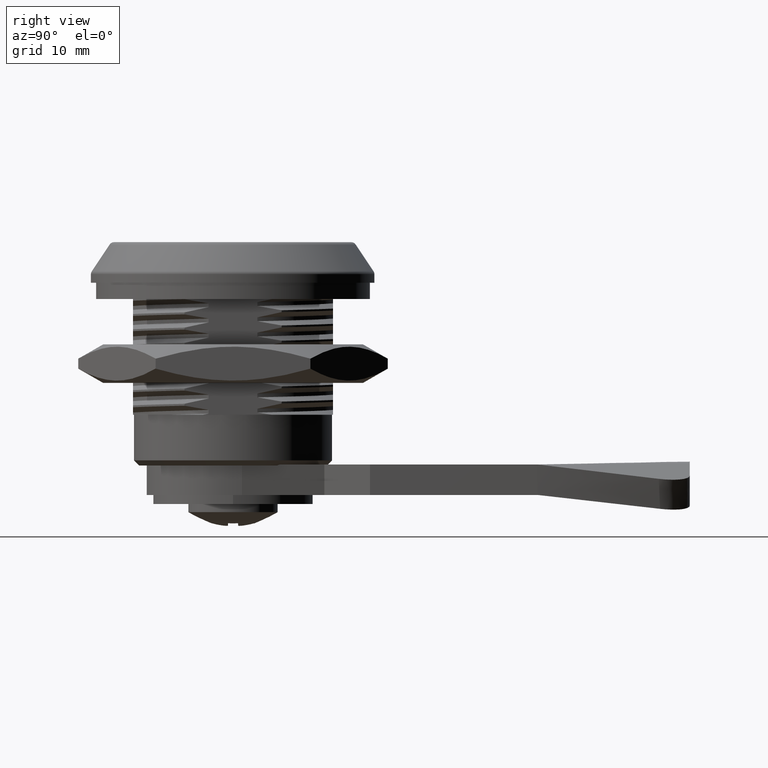
[diagram: clean part render]
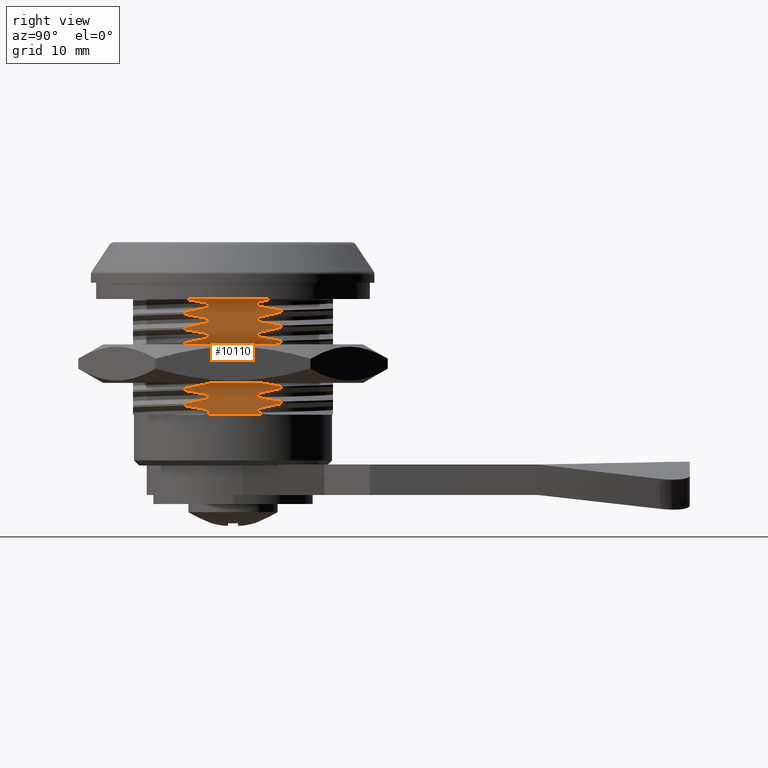
[diagram: same view with one face highlighted and labeled with its STEP entity id]
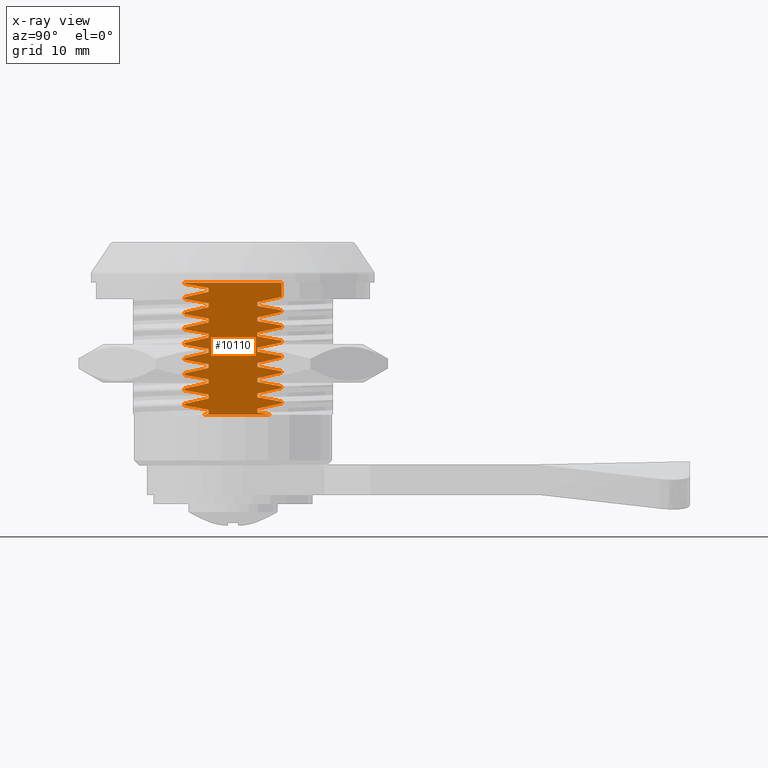
[diagram: x-ray of the same camera — body ghosted, the highlighted face saturated]
A machine part, right view. The second image highlights one B-rep face of the part: STEP entity #10110.
The next image is the same camera in x-ray: the body ghosted, the highlighted face saturated — about 0% of this face is hidden behind the body in this view.
In plain terms, the highlighted planar face has unit normal (-1, -0, 0).
Its self-contained STEP definition (entity closure, byte-faithful):
#400=PLANE('',#10740);
#667=LINE('',#13926,#1502);
#683=LINE('',#14009,#1518);
#685=LINE('',#14020,#1520);
#687=LINE('',#14037,#1522);
#689=LINE('',#14054,#1524);
#691=LINE('',#14071,#1526);
#693=LINE('',#14088,#1528);
#695=LINE('',#14105,#1530);
#697=LINE('',#14122,#1532);
#699=LINE('',#14139,#1534);
#798=LINE('',#15328,#1633);
#799=LINE('',#15342,#1634);
#800=LINE('',#15356,#1635);
#801=LINE('',#15370,#1636);
#802=LINE('',#15384,#1637);
#803=LINE('',#15398,#1638);
#804=LINE('',#15412,#1639);
#805=LINE('',#15426,#1640);
#806=LINE('',#15437,#1641);
#807=LINE('',#15446,#1642);
#808=LINE('',#15455,#1643);
#809=LINE('',#15472,#1644);
#810=LINE('',#15489,#1645);
#811=LINE('',#15506,#1646);
#812=LINE('',#15523,#1647);
#813=LINE('',#15540,#1648);
#814=LINE('',#15557,#1649);
#815=LINE('',#15574,#1650);
#816=LINE('',#15591,#1651);
#817=LINE('',#15608,#1652);
#818=LINE('',#15625,#1653);
#819=LINE('',#15642,#1654);
#820=LINE('',#15659,#1655);
#821=LINE('',#15676,#1656);
#822=LINE('',#15693,#1657);
#823=LINE('',#15710,#1658);
#1502=VECTOR('',#11474,9.56660859448112);
#1518=VECTOR('',#11532,0.10828697009722);
#1520=VECTOR('',#11536,0.187500004096758);
#1522=VECTOR('',#11540,0.18750000409676);
#1524=VECTOR('',#11544,0.18750000409676);
#1526=VECTOR('',#11548,0.1875000040967);
#1528=VECTOR('',#11552,0.187500004096701);
#1530=VECTOR('',#11556,0.187500004096699);
#1532=VECTOR('',#11560,0.187500004096701);
#1534=VECTOR('',#11564,0.187500004096697);
#1633=VECTOR('',#11713,1.39171302990278);
#1634=VECTOR('',#11716,0.187500004096779);
#1635=VECTOR('',#11719,0.187500004096779);
#1636=VECTOR('',#11722,0.187500004096786);
#1637=VECTOR('',#11725,0.187500004096799);
#1638=VECTOR('',#11728,0.187500004096806);
#1639=VECTOR('',#11731,0.187500004096799);
#1640=VECTOR('',#11734,0.187500004096803);
#1641=VECTOR('',#11737,0.374999999999999);
#1642=VECTOR('',#11738,6.78163060013395);
#1643=VECTOR('',#11739,0.374999999999999);
#1644=VECTOR('',#11740,0.375000000000001);
#1645=VECTOR('',#11741,0.374999999999999);
#1646=VECTOR('',#11742,0.375000000000001);
#1647=VECTOR('',#11743,0.374999999999999);
#1648=VECTOR('',#11744,0.375000000000021);
#1649=VECTOR('',#11745,0.375000000000019);
#1650=VECTOR('',#11746,0.37500000000001);
#1651=VECTOR('',#11747,0.37499999999998);
#1652=VECTOR('',#11748,0.374999999999981);
#1653=VECTOR('',#11749,0.374999999999981);
#1654=VECTOR('',#11750,0.374999999999981);
#1655=VECTOR('',#11751,0.374999999999999);
#1656=VECTOR('',#11752,0.375000000000001);
#1657=VECTOR('',#11753,0.374999999999999);
#1658=VECTOR('',#11754,0.375000000000001);
#2438=B_SPLINE_CURVE_WITH_KNOTS('',3,(#15429,#15430,#15431,#15432,#15433,
#15434,#15435),.UNSPECIFIED.,.F.,.F.,(4,3,4),(-0.242170769104167,-0.121071173947131,
0.),.UNSPECIFIED.);
#2439=B_SPLINE_CURVE_WITH_KNOTS('',3,(#15439,#15440,#15441,#15442,#15443,
#15444),.UNSPECIFIED.,.F.,.F.,(4,2,4),(-0.0580920299783846,-0.0290455949117338,
0.),.UNSPECIFIED.);
#2440=B_SPLINE_CURVE_WITH_KNOTS('',3,(#15448,#15449,#15450,#15451,#15452,
#15453),.UNSPECIFIED.,.F.,.F.,(4,2,4),(-0.14265153983592,-0.0713248517239224,
-1.00000000827216E-6),.UNSPECIFIED.);
#2441=B_SPLINE_CURVE_WITH_KNOTS('',3,(#15456,#15457,#15458,#15459,#15460,
#15461,#15462),.UNSPECIFIED.,.F.,.F.,(4,3,4),(-0.244169262059711,-0.122096895773138,
0.),.UNSPECIFIED.);
#2442=B_SPLINE_CURVE_WITH_KNOTS('',3,(#15464,#15465,#15466,#15467,#15468,
#15469,#15470),.UNSPECIFIED.,.F.,.F.,(4,3,4),(-0.242170769104439,-0.121071173947087,
0.),.UNSPECIFIED.);
#2443=B_SPLINE_CURVE_WITH_KNOTS('',3,(#15473,#15474,#15475,#15476,#15477,
#15478,#15479),.UNSPECIFIED.,.F.,.F.,(4,3,4),(-0.244169262058095,-0.122096895772789,
0.),.UNSPECIFIED.);
#2444=B_SPLINE_CURVE_WITH_KNOTS('',3,(#15481,#15482,#15483,#15484,#15485,
#15486,#15487),.UNSPECIFIED.,.F.,.F.,(4,3,4),(-0.242170769104423,-0.121071173947077,
0.),.UNSPECIFIED.);
#2445=B_SPLINE_CURVE_WITH_KNOTS('',3,(#15490,#15491,#15492,#15493,#15494,
#15495,#15496),.UNSPECIFIED.,.F.,.F.,(4,3,4),(-0.244169262058105,-0.122096895772787,
0.),.UNSPECIFIED.);
#2446=B_SPLINE_CURVE_WITH_KNOTS('',3,(#15498,#15499,#15500,#15501,#15502,
#15503,#15504),.UNSPECIFIED.,.F.,.F.,(4,3,4),(-0.242170769104279,-0.121071173947058,
0.),.UNSPECIFIED.);
#2447=B_SPLINE_CURVE_WITH_KNOTS('',3,(#15507,#15508,#15509,#15510,#15511,
#15512,#15513),.UNSPECIFIED.,.F.,.F.,(4,3,4),(-0.244169262058275,-0.122096895772829,
0.),.UNSPECIFIED.);
#2448=B_SPLINE_CURVE_WITH_KNOTS('',3,(#15515,#15516,#15517,#15518,#15519,
#15520,#15521),.UNSPECIFIED.,.F.,.F.,(4,3,4),(-0.242170769104214,-0.121071173947013,
0.),.UNSPECIFIED.);
#2449=B_SPLINE_CURVE_WITH_KNOTS('',3,(#15524,#15525,#15526,#15527,#15528,
#15529,#15530),.UNSPECIFIED.,.F.,.F.,(4,3,4),(-0.244169262059622,-0.12209689577311,
0.),.UNSPECIFIED.);
#2450=B_SPLINE_CURVE_WITH_KNOTS('',3,(#15532,#15533,#15534,#15535,#15536,
#15537,#15538),.UNSPECIFIED.,.F.,.F.,(4,3,4),(-0.242170769104195,-0.121071173947005,
0.),.UNSPECIFIED.);
#2451=B_SPLINE_CURVE_WITH_KNOTS('',3,(#15541,#15542,#15543,#15544,#15545,
#15546,#15547),.UNSPECIFIED.,.F.,.F.,(4,3,4),(-0.244169262059585,-0.122096895773099,
0.),.UNSPECIFIED.);
#2452=B_SPLINE_CURVE_WITH_KNOTS('',3,(#15549,#15550,#15551,#15552,#15553,
#15554,#15555),.UNSPECIFIED.,.F.,.F.,(4,3,4),(-0.242170769104369,-0.121071173947077,
0.),.UNSPECIFIED.);
#2453=B_SPLINE_CURVE_WITH_KNOTS('',3,(#15558,#15559,#15560,#15561,#15562,
#15563,#15564),.UNSPECIFIED.,.F.,.F.,(4,3,4),(-0.244169262059676,-0.122096895773125,
0.),.UNSPECIFIED.);
#2454=B_SPLINE_CURVE_WITH_KNOTS('',3,(#15566,#15567,#15568,#15569,#15570,
#15571,#15572),.UNSPECIFIED.,.F.,.F.,(4,3,4),(-0.242170769104306,-0.121071173947062,
0.),.UNSPECIFIED.);
#2455=B_SPLINE_CURVE_WITH_KNOTS('',3,(#15575,#15576,#15577,#15578,#15579,
#15580,#15581),.UNSPECIFIED.,.F.,.F.,(4,3,4),(-0.24416926205969,-0.122096895773128,
0.),.UNSPECIFIED.);
#2456=B_SPLINE_CURVE_WITH_KNOTS('',3,(#15583,#15584,#15585,#15586,#15587,
#15588,#15589),.UNSPECIFIED.,.F.,.F.,(4,3,4),(-0.24217076910357,-0.121071173947091,
0.),.UNSPECIFIED.);
#2457=B_SPLINE_CURVE_WITH_KNOTS('',3,(#15592,#15593,#15594,#15595,#15596,
#15597,#15598),.UNSPECIFIED.,.F.,.F.,(4,3,4),(-0.244169262058321,-0.122096895772846,
0.),.UNSPECIFIED.);
#2458=B_SPLINE_CURVE_WITH_KNOTS('',3,(#15600,#15601,#15602,#15603,#15604,
#15605,#15606),.UNSPECIFIED.,.F.,.F.,(4,3,4),(-0.242170769104179,-0.121071173947099,
0.),.UNSPECIFIED.);
#2459=B_SPLINE_CURVE_WITH_KNOTS('',3,(#15609,#15610,#15611,#15612,#15613,
#15614,#15615),.UNSPECIFIED.,.F.,.F.,(4,3,4),(-0.244169262057414,-0.122096895772652,
0.),.UNSPECIFIED.);
#2460=B_SPLINE_CURVE_WITH_KNOTS('',3,(#15617,#15618,#15619,#15620,#15621,
#15622,#15623),.UNSPECIFIED.,.F.,.F.,(4,3,4),(-0.242170769104276,-0.12107117394715,
0.),.UNSPECIFIED.);
#2461=B_SPLINE_CURVE_WITH_KNOTS('',3,(#15626,#15627,#15628,#15629,#15630,
#15631,#15632),.UNSPECIFIED.,.F.,.F.,(4,3,4),(-0.244169262057426,-0.122096895772653,
0.),.UNSPECIFIED.);
#2462=B_SPLINE_CURVE_WITH_KNOTS('',3,(#15634,#15635,#15636,#15637,#15638,
#15639,#15640),.UNSPECIFIED.,.F.,.F.,(4,3,4),(-0.242170769104282,-0.12107117394712,
0.),.UNSPECIFIED.);
#2463=B_SPLINE_CURVE_WITH_KNOTS('',3,(#15643,#15644,#15645,#15646,#15647,
#15648,#15649),.UNSPECIFIED.,.F.,.F.,(4,3,4),(-0.244169262057359,-0.122096895772636,
0.),.UNSPECIFIED.);
#2464=B_SPLINE_CURVE_WITH_KNOTS('',3,(#15651,#15652,#15653,#15654,#15655,
#15656,#15657),.UNSPECIFIED.,.F.,.F.,(4,3,4),(-0.242170769104159,-0.1210711739471,
0.),.UNSPECIFIED.);
#2465=B_SPLINE_CURVE_WITH_KNOTS('',3,(#15660,#15661,#15662,#15663,#15664,
#15665,#15666),.UNSPECIFIED.,.F.,.F.,(4,3,4),(-0.244169262057405,-0.122096895772653,
0.),.UNSPECIFIED.);
#2466=B_SPLINE_CURVE_WITH_KNOTS('',3,(#15668,#15669,#15670,#15671,#15672,
#15673,#15674),.UNSPECIFIED.,.F.,.F.,(4,3,4),(-0.242170769104205,-0.121071173947156,
0.),.UNSPECIFIED.);
#2467=B_SPLINE_CURVE_WITH_KNOTS('',3,(#15677,#15678,#15679,#15680,#15681,
#15682,#15683),.UNSPECIFIED.,.F.,.F.,(4,3,4),(-0.244169262057269,-0.12209689577262,
0.),.UNSPECIFIED.);
#2468=B_SPLINE_CURVE_WITH_KNOTS('',3,(#15685,#15686,#15687,#15688,#15689,
#15690,#15691),.UNSPECIFIED.,.F.,.F.,(4,3,4),(-0.242170769104379,-0.121071173947181,
0.),.UNSPECIFIED.);
#2469=B_SPLINE_CURVE_WITH_KNOTS('',3,(#15694,#15695,#15696,#15697,#15698,
#15699,#15700),.UNSPECIFIED.,.F.,.F.,(4,3,4),(-0.244169262057385,-0.122096895772655,
0.),.UNSPECIFIED.);
#2470=B_SPLINE_CURVE_WITH_KNOTS('',3,(#15702,#15703,#15704,#15705,#15706,
#15707,#15708),.UNSPECIFIED.,.F.,.F.,(4,3,4),(-0.242170769104304,-0.12107117394714,
0.),.UNSPECIFIED.);
#2471=B_SPLINE_CURVE_WITH_KNOTS('',3,(#15711,#15712,#15713,#15714,#15715,
#15716,#15717),.UNSPECIFIED.,.F.,.F.,(4,3,4),(-0.244169262057398,-0.12209689577266,
0.),.UNSPECIFIED.);
#2733=FACE_OUTER_BOUND('',#3330,.T.);
#3330=EDGE_LOOP('',(#7211,#7212,#7213,#7214,#7215,#7216,#7217,#7218,#7219,
#7220,#7221,#7222,#7223,#7224,#7225,#7226,#7227,#7228,#7229,#7230,#7231,
#7232,#7233,#7234,#7235,#7236,#7237,#7238,#7239,#7240,#7241,#7242,#7243,
#7244,#7245,#7246,#7247,#7248,#7249,#7250,#7251,#7252,#7253,#7254,#7255,
#7256,#7257,#7258,#7259,#7260,#7261,#7262,#7263,#7264,#7265,#7266,#7267,
#7268,#7269,#7270,#7271,#7272,#7273,#7274,#7275,#7276,#7277,#7278,#7279,
#7280));
#4242=VERTEX_POINT('',#13922);
#4244=VERTEX_POINT('',#13925);
#4274=VERTEX_POINT('',#14002);
#4276=VERTEX_POINT('',#14012);
#4278=VERTEX_POINT('',#14019);
#4280=VERTEX_POINT('',#14029);
#4282=VERTEX_POINT('',#14036);
#4284=VERTEX_POINT('',#14046);
#4286=VERTEX_POINT('',#14053);
#4288=VERTEX_POINT('',#14063);
#4290=VERTEX_POINT('',#14070);
#4292=VERTEX_POINT('',#14080);
#4294=VERTEX_POINT('',#14087);
#4296=VERTEX_POINT('',#14097);
#4298=VERTEX_POINT('',#14104);
#4300=VERTEX_POINT('',#14114);
#4302=VERTEX_POINT('',#14121);
#4304=VERTEX_POINT('',#14131);
#4306=VERTEX_POINT('',#14138);
#4497=VERTEX_POINT('',#15322);
#4498=VERTEX_POINT('',#15330);
#4499=VERTEX_POINT('',#15336);
#4500=VERTEX_POINT('',#15344);
#4501=VERTEX_POINT('',#15350);
#4502=VERTEX_POINT('',#15358);
#4503=VERTEX_POINT('',#15364);
#4504=VERTEX_POINT('',#15372);
#4505=VERTEX_POINT('',#15378);
#4506=VERTEX_POINT('',#15386);
#4507=VERTEX_POINT('',#15392);
#4508=VERTEX_POINT('',#15400);
#4509=VERTEX_POINT('',#15406);
#4510=VERTEX_POINT('',#15414);
#4511=VERTEX_POINT('',#15420);
#4512=VERTEX_POINT('',#15428);
#4513=VERTEX_POINT('',#15436);
#4514=VERTEX_POINT('',#15438);
#4515=VERTEX_POINT('',#15445);
#4516=VERTEX_POINT('',#15447);
#4517=VERTEX_POINT('',#15454);
#4518=VERTEX_POINT('',#15463);
#4519=VERTEX_POINT('',#15471);
#4520=VERTEX_POINT('',#15480);
#4521=VERTEX_POINT('',#15488);
#4522=VERTEX_POINT('',#15497);
#4523=VERTEX_POINT('',#15505);
#4524=VERTEX_POINT('',#15514);
#4525=VERTEX_POINT('',#15522);
#4526=VERTEX_POINT('',#15531);
#4527=VERTEX_POINT('',#15539);
#4528=VERTEX_POINT('',#15548);
#4529=VERTEX_POINT('',#15556);
#4530=VERTEX_POINT('',#15565);
#4531=VERTEX_POINT('',#15573);
#4532=VERTEX_POINT('',#15582);
#4533=VERTEX_POINT('',#15590);
#4534=VERTEX_POINT('',#15599);
#4535=VERTEX_POINT('',#15607);
#4536=VERTEX_POINT('',#15616);
#4537=VERTEX_POINT('',#15624);
#4538=VERTEX_POINT('',#15633);
#4539=VERTEX_POINT('',#15641);
#4540=VERTEX_POINT('',#15650);
#4541=VERTEX_POINT('',#15658);
#4542=VERTEX_POINT('',#15667);
#4543=VERTEX_POINT('',#15675);
#4544=VERTEX_POINT('',#15684);
#4545=VERTEX_POINT('',#15692);
#4546=VERTEX_POINT('',#15701);
#4547=VERTEX_POINT('',#15709);
#5272=EDGE_CURVE('',#4244,#4242,#667,.T.);
#5306=EDGE_CURVE('',#4274,#4242,#683,.T.);
#5309=EDGE_CURVE('',#4276,#4278,#685,.T.);
#5313=EDGE_CURVE('',#4280,#4282,#687,.T.);
#5317=EDGE_CURVE('',#4284,#4286,#689,.T.);
#5321=EDGE_CURVE('',#4288,#4290,#691,.T.);
#5325=EDGE_CURVE('',#4292,#4294,#693,.T.);
#5329=EDGE_CURVE('',#4296,#4298,#695,.T.);
#5333=EDGE_CURVE('',#4300,#4302,#697,.T.);
#5337=EDGE_CURVE('',#4304,#4306,#699,.T.);
#5575=EDGE_CURVE('',#4497,#4244,#798,.T.);
#5578=EDGE_CURVE('',#4498,#4499,#799,.T.);
#5581=EDGE_CURVE('',#4500,#4501,#800,.T.);
#5584=EDGE_CURVE('',#4502,#4503,#801,.T.);
#5587=EDGE_CURVE('',#4504,#4505,#802,.T.);
#5590=EDGE_CURVE('',#4506,#4507,#803,.T.);
#5593=EDGE_CURVE('',#4508,#4509,#804,.T.);
#5596=EDGE_CURVE('',#4510,#4511,#805,.T.);
#5597=EDGE_CURVE('',#4512,#4304,#2438,.T.);
#5598=EDGE_CURVE('',#4513,#4512,#806,.T.);
#5599=EDGE_CURVE('',#4514,#4513,#2439,.T.);
#5600=EDGE_CURVE('',#4515,#4514,#807,.T.);
#5601=EDGE_CURVE('',#4516,#4515,#2440,.T.);
#5602=EDGE_CURVE('',#4517,#4516,#808,.T.);
#5603=EDGE_CURVE('',#4510,#4517,#2441,.T.);
#5604=EDGE_CURVE('',#4518,#4511,#2442,.T.);
#5605=EDGE_CURVE('',#4519,#4518,#809,.T.);
#5606=EDGE_CURVE('',#4508,#4519,#2443,.T.);
#5607=EDGE_CURVE('',#4520,#4509,#2444,.T.);
#5608=EDGE_CURVE('',#4521,#4520,#810,.T.);
#5609=EDGE_CURVE('',#4506,#4521,#2445,.T.);
#5610=EDGE_CURVE('',#4522,#4507,#2446,.T.);
#5611=EDGE_CURVE('',#4523,#4522,#811,.T.);
#5612=EDGE_CURVE('',#4504,#4523,#2447,.T.);
#5613=EDGE_CURVE('',#4524,#4505,#2448,.T.);
#5614=EDGE_CURVE('',#4525,#4524,#812,.T.);
#5615=EDGE_CURVE('',#4502,#4525,#2449,.T.);
#5616=EDGE_CURVE('',#4526,#4503,#2450,.T.);
#5617=EDGE_CURVE('',#4527,#4526,#813,.T.);
#5618=EDGE_CURVE('',#4500,#4527,#2451,.T.);
#5619=EDGE_CURVE('',#4528,#4501,#2452,.T.);
#5620=EDGE_CURVE('',#4529,#4528,#814,.T.);
#5621=EDGE_CURVE('',#4498,#4529,#2453,.T.);
#5622=EDGE_CURVE('',#4530,#4499,#2454,.T.);
#5623=EDGE_CURVE('',#4531,#4530,#815,.T.);
#5624=EDGE_CURVE('',#4497,#4531,#2455,.T.);
#5625=EDGE_CURVE('',#4532,#4274,#2456,.T.);
#5626=EDGE_CURVE('',#4533,#4532,#816,.T.);
#5627=EDGE_CURVE('',#4278,#4533,#2457,.T.);
#5628=EDGE_CURVE('',#4534,#4276,#2458,.T.);
#5629=EDGE_CURVE('',#4535,#4534,#817,.T.);
#5630=EDGE_CURVE('',#4282,#4535,#2459,.T.);
#5631=EDGE_CURVE('',#4536,#4280,#2460,.T.);
#5632=EDGE_CURVE('',#4537,#4536,#818,.T.);
#5633=EDGE_CURVE('',#4286,#4537,#2461,.T.);
#5634=EDGE_CURVE('',#4538,#4284,#2462,.T.);
#5635=EDGE_CURVE('',#4539,#4538,#819,.T.);
#5636=EDGE_CURVE('',#4290,#4539,#2463,.T.);
#5637=EDGE_CURVE('',#4540,#4288,#2464,.T.);
#5638=EDGE_CURVE('',#4541,#4540,#820,.T.);
#5639=EDGE_CURVE('',#4294,#4541,#2465,.T.);
#5640=EDGE_CURVE('',#4542,#4292,#2466,.T.);
#5641=EDGE_CURVE('',#4543,#4542,#821,.T.);
#5642=EDGE_CURVE('',#4298,#4543,#2467,.T.);
#5643=EDGE_CURVE('',#4544,#4296,#2468,.T.);
#5644=EDGE_CURVE('',#4545,#4544,#822,.T.);
#5645=EDGE_CURVE('',#4302,#4545,#2469,.T.);
#5646=EDGE_CURVE('',#4546,#4300,#2470,.T.);
#5647=EDGE_CURVE('',#4547,#4546,#823,.T.);
#5648=EDGE_CURVE('',#4306,#4547,#2471,.T.);
#7211=ORIENTED_EDGE('',*,*,#5597,.F.);
#7212=ORIENTED_EDGE('',*,*,#5598,.F.);
#7213=ORIENTED_EDGE('',*,*,#5599,.F.);
#7214=ORIENTED_EDGE('',*,*,#5600,.F.);
#7215=ORIENTED_EDGE('',*,*,#5601,.F.);
#7216=ORIENTED_EDGE('',*,*,#5602,.F.);
#7217=ORIENTED_EDGE('',*,*,#5603,.F.);
#7218=ORIENTED_EDGE('',*,*,#5596,.T.);
#7219=ORIENTED_EDGE('',*,*,#5604,.F.);
#7220=ORIENTED_EDGE('',*,*,#5605,.F.);
#7221=ORIENTED_EDGE('',*,*,#5606,.F.);
#7222=ORIENTED_EDGE('',*,*,#5593,.T.);
#7223=ORIENTED_EDGE('',*,*,#5607,.F.);
#7224=ORIENTED_EDGE('',*,*,#5608,.F.);
#7225=ORIENTED_EDGE('',*,*,#5609,.F.);
#7226=ORIENTED_EDGE('',*,*,#5590,.T.);
#7227=ORIENTED_EDGE('',*,*,#5610,.F.);
#7228=ORIENTED_EDGE('',*,*,#5611,.F.);
#7229=ORIENTED_EDGE('',*,*,#5612,.F.);
#7230=ORIENTED_EDGE('',*,*,#5587,.T.);
#7231=ORIENTED_EDGE('',*,*,#5613,.F.);
#7232=ORIENTED_EDGE('',*,*,#5614,.F.);
#7233=ORIENTED_EDGE('',*,*,#5615,.F.);
#7234=ORIENTED_EDGE('',*,*,#5584,.T.);
#7235=ORIENTED_EDGE('',*,*,#5616,.F.);
#7236=ORIENTED_EDGE('',*,*,#5617,.F.);
#7237=ORIENTED_EDGE('',*,*,#5618,.F.);
#7238=ORIENTED_EDGE('',*,*,#5581,.T.);
#7239=ORIENTED_EDGE('',*,*,#5619,.F.);
#7240=ORIENTED_EDGE('',*,*,#5620,.F.);
#7241=ORIENTED_EDGE('',*,*,#5621,.F.);
#7242=ORIENTED_EDGE('',*,*,#5578,.T.);
#7243=ORIENTED_EDGE('',*,*,#5622,.F.);
#7244=ORIENTED_EDGE('',*,*,#5623,.F.);
#7245=ORIENTED_EDGE('',*,*,#5624,.F.);
#7246=ORIENTED_EDGE('',*,*,#5575,.T.);
#7247=ORIENTED_EDGE('',*,*,#5272,.T.);
#7248=ORIENTED_EDGE('',*,*,#5306,.F.);
#7249=ORIENTED_EDGE('',*,*,#5625,.F.);
#7250=ORIENTED_EDGE('',*,*,#5626,.F.);
#7251=ORIENTED_EDGE('',*,*,#5627,.F.);
#7252=ORIENTED_EDGE('',*,*,#5309,.F.);
#7253=ORIENTED_EDGE('',*,*,#5628,.F.);
#7254=ORIENTED_EDGE('',*,*,#5629,.F.);
#7255=ORIENTED_EDGE('',*,*,#5630,.F.);
#7256=ORIENTED_EDGE('',*,*,#5313,.F.);
#7257=ORIENTED_EDGE('',*,*,#5631,.F.);
#7258=ORIENTED_EDGE('',*,*,#5632,.F.);
#7259=ORIENTED_EDGE('',*,*,#5633,.F.);
#7260=ORIENTED_EDGE('',*,*,#5317,.F.);
#7261=ORIENTED_EDGE('',*,*,#5634,.F.);
#7262=ORIENTED_EDGE('',*,*,#5635,.F.);
#7263=ORIENTED_EDGE('',*,*,#5636,.F.);
#7264=ORIENTED_EDGE('',*,*,#5321,.F.);
#7265=ORIENTED_EDGE('',*,*,#5637,.F.);
#7266=ORIENTED_EDGE('',*,*,#5638,.F.);
#7267=ORIENTED_EDGE('',*,*,#5639,.F.);
#7268=ORIENTED_EDGE('',*,*,#5325,.F.);
#7269=ORIENTED_EDGE('',*,*,#5640,.F.);
#7270=ORIENTED_EDGE('',*,*,#5641,.F.);
#7271=ORIENTED_EDGE('',*,*,#5642,.F.);
#7272=ORIENTED_EDGE('',*,*,#5329,.F.);
#7273=ORIENTED_EDGE('',*,*,#5643,.F.);
#7274=ORIENTED_EDGE('',*,*,#5644,.F.);
#7275=ORIENTED_EDGE('',*,*,#5645,.F.);
#7276=ORIENTED_EDGE('',*,*,#5333,.F.);
#7277=ORIENTED_EDGE('',*,*,#5646,.F.);
#7278=ORIENTED_EDGE('',*,*,#5647,.F.);
#7279=ORIENTED_EDGE('',*,*,#5648,.F.);
#7280=ORIENTED_EDGE('',*,*,#5337,.F.);
#10110=ADVANCED_FACE('',(#2733),#400,.F.);
#10740=AXIS2_PLACEMENT_3D('',#15427,#11735,#11736);
#11474=DIRECTION('',(0.,0.,-1.));
#11532=DIRECTION('',(0.,-1.,0.));
#11536=DIRECTION('',(0.,-1.,0.));
#11540=DIRECTION('',(0.,-1.,0.));
#11544=DIRECTION('',(0.,-1.,0.));
#11548=DIRECTION('',(0.,-1.,0.));
#11552=DIRECTION('',(0.,-1.,0.));
#11556=DIRECTION('',(0.,-1.,0.));
#11560=DIRECTION('',(0.,-1.,0.));
#11564=DIRECTION('',(0.,-1.,0.));
#11713=DIRECTION('',(0.,-1.,0.));
#11716=DIRECTION('',(0.,-1.,0.));
#11719=DIRECTION('',(0.,-1.,0.));
#11722=DIRECTION('',(0.,-1.,0.));
#11725=DIRECTION('',(0.,-1.,0.));
#11728=DIRECTION('',(0.,-1.,0.));
#11731=DIRECTION('',(0.,-1.,0.));
#11734=DIRECTION('',(0.,-1.,0.));
#11735=DIRECTION('center_axis',(-1.,0.,0.));
#11736=DIRECTION('ref_axis',(0.,0.,1.));
#11737=DIRECTION('',(-9.47390314346804E-14,-1.,-3.66373598126303E-13));
#11738=DIRECTION('',(0.,0.,-1.));
#11739=DIRECTION('',(3.55271367880041E-13,1.,-1.47437617670217E-12));
#11740=DIRECTION('',(0.,1.,0.));
#11741=DIRECTION('',(0.,1.,0.));
#11742=DIRECTION('',(0.,1.,0.));
#11743=DIRECTION('',(3.55271367880039E-13,1.,-1.47733677143449E-12));
#11744=DIRECTION('',(3.55271367880039E-13,1.,-1.47733677143449E-12));
#11745=DIRECTION('',(3.75995531006371E-13,1.,-1.51952524637024E-12));
#11746=DIRECTION('',(3.55271367880039E-13,1.,-1.47807692011758E-12));
#11747=DIRECTION('',(-3.70074341541734E-13,-1.,-1.48473825826544E-12));
#11748=DIRECTION('',(-3.19744231092058E-13,-1.,-1.31376391247315E-12));
#11749=DIRECTION('',(-3.31586610021393E-13,-1.,-1.33818881901491E-12));
#11750=DIRECTION('',(-3.16783636359723E-13,-1.,-1.29303974934681E-12));
#11751=DIRECTION('',(-3.1382304162739E-13,-1.,-1.29303974934682E-12));
#11752=DIRECTION('',(-3.6119255734473E-13,-1.,-1.47733677143459E-12));
#11753=DIRECTION('',(-3.16783636359722E-13,-1.,-1.29155945198064E-12));
#11754=DIRECTION('',(-3.1678363635972E-13,-1.,-1.29155945198063E-12));
#13922=CARTESIAN_POINT('',(9.85,4.1,-4.78330429724056));
#13925=CARTESIAN_POINT('',(9.85,4.1,4.78330429724056));
#13926=CARTESIAN_POINT('',(9.85,4.1,-4.54972526643094));
#14002=CARTESIAN_POINT('',(9.85,4.20828697009722,-4.78330429724057));
#14009=CARTESIAN_POINT('',(9.85,17.1,-4.78330429724056));
#14012=CARTESIAN_POINT('',(9.85,5.70828697009722,-4.78330429724057));
#14019=CARTESIAN_POINT('',(9.85,5.52078696600046,-4.78330429724056));
#14020=CARTESIAN_POINT('',(9.85,17.1,-4.78330429724056));
#14029=CARTESIAN_POINT('',(9.85,7.20828697009722,-4.78330429724057));
#14036=CARTESIAN_POINT('',(9.85,7.02078696600046,-4.78330429724056));
#14037=CARTESIAN_POINT('',(9.85,17.1,-4.78330429724056));
#14046=CARTESIAN_POINT('',(9.84999999999999,8.70828697009722,-4.78330429724058));
#14053=CARTESIAN_POINT('',(9.85,8.52078696600046,-4.78330429724056));
#14054=CARTESIAN_POINT('',(9.85,17.1,-4.78330429724056));
#14063=CARTESIAN_POINT('',(9.85,10.2082869700972,-4.78330429724057));
#14070=CARTESIAN_POINT('',(9.85,10.0207869660005,-4.78330429724056));
#14071=CARTESIAN_POINT('',(9.85,17.1,-4.78330429724056));
#14080=CARTESIAN_POINT('',(9.85,11.7082869700972,-4.78330429724057));
#14087=CARTESIAN_POINT('',(9.85,11.5207869660005,-4.78330429724056));
#14088=CARTESIAN_POINT('',(9.85,17.1,-4.78330429724056));
#14097=CARTESIAN_POINT('',(9.84999999999998,13.2082869700972,-4.78330429724059));
#14104=CARTESIAN_POINT('',(9.85,13.0207869660005,-4.78330429724056));
#14105=CARTESIAN_POINT('',(9.85,17.1,-4.78330429724056));
#14114=CARTESIAN_POINT('',(9.84999999999998,14.7082869700972,-4.78330429724059));
#14121=CARTESIAN_POINT('',(9.85,14.5207869660005,-4.78330429724056));
#14122=CARTESIAN_POINT('',(9.85,17.1,-4.78330429724056));
#14131=CARTESIAN_POINT('',(9.85,16.2082869700972,-4.78330429724057));
#14138=CARTESIAN_POINT('',(9.85,16.0207869660005,-4.78330429724056));
#14139=CARTESIAN_POINT('',(9.85,17.1,-4.78330429724056));
#15322=CARTESIAN_POINT('',(9.85,5.49171302990278,4.78330429724057));
#15328=CARTESIAN_POINT('',(9.85,46.1,4.78330429724057));
#15330=CARTESIAN_POINT('',(9.85,6.99171302990278,4.78330429724057));
#15336=CARTESIAN_POINT('',(9.85,6.804213025806,4.78330429724056));
#15342=CARTESIAN_POINT('',(9.85,46.1,4.78330429724057));
#15344=CARTESIAN_POINT('',(9.85000000000001,8.49171302990278,4.78330429724055));
#15350=CARTESIAN_POINT('',(9.85,8.304213025806,4.78330429724057));
#15356=CARTESIAN_POINT('',(9.85,46.1,4.78330429724057));
#15358=CARTESIAN_POINT('',(9.85000000000001,9.99171302990278,4.78330429724055));
#15364=CARTESIAN_POINT('',(9.85000000000001,9.80421302580599,4.78330429724055));
#15370=CARTESIAN_POINT('',(9.85,46.1,4.78330429724057));
#15372=CARTESIAN_POINT('',(9.85000000000001,11.4917130299028,4.78330429724055));
#15378=CARTESIAN_POINT('',(9.85000000000001,11.304213025806,4.78330429724055));
#15384=CARTESIAN_POINT('',(9.85,46.1,4.78330429724057));
#15386=CARTESIAN_POINT('',(9.85,12.9917130299028,4.78330429724057));
#15392=CARTESIAN_POINT('',(9.85000000000001,12.804213025806,4.78330429724055));
#15398=CARTESIAN_POINT('',(9.85,46.1,4.78330429724057));
#15400=CARTESIAN_POINT('',(9.85,14.4917130299028,4.78330429724057));
#15406=CARTESIAN_POINT('',(9.85,14.304213025806,4.78330429724057));
#15412=CARTESIAN_POINT('',(9.85,46.1,4.78330429724057));
#15414=CARTESIAN_POINT('',(9.84999999999998,15.9917130299028,4.7833042972406));
#15420=CARTESIAN_POINT('',(9.85,15.804213025806,4.78330429724057));
#15426=CARTESIAN_POINT('',(9.85,46.1,4.78330429724057));
#15427=CARTESIAN_POINT('Origin',(9.85,46.1,-4.54972526643094));
#15428=CARTESIAN_POINT('',(9.84999999999996,16.624987483286,-2.39970741716355));
#15429=CARTESIAN_POINT('Ctrl Pts',(9.85,16.624987483286,-2.39970741716356));
#15430=CARTESIAN_POINT('Ctrl Pts',(9.85,16.5794648375589,-2.80093254964901));
#15431=CARTESIAN_POINT('Ctrl Pts',(9.85,16.5210457468029,-3.19981690211575));
#15432=CARTESIAN_POINT('Ctrl Pts',(9.85,16.4510090321387,-3.59743546849657));
#15433=CARTESIAN_POINT('Ctrl Pts',(9.85,16.3809887545912,-3.99496071664025));
#15434=CARTESIAN_POINT('Ctrl Pts',(9.85,16.2995358915117,-4.39018491684831));
#15435=CARTESIAN_POINT('Ctrl Pts',(9.85,16.2082869700972,-4.78330429724056));
#15436=CARTESIAN_POINT('',(9.84999999999999,16.999987483286,-2.39970741716342));
#15437=CARTESIAN_POINT('',(9.84999999999999,16.999987483286,-2.39970741716342));
#15438=CARTESIAN_POINT('',(9.85,17.1,-2.97191514051188));
#15439=CARTESIAN_POINT('Ctrl Pts',(9.85,17.1,-2.97191514051188));
#15440=CARTESIAN_POINT('Ctrl Pts',(9.85,17.0819771802405,-2.87678472292055));
#15441=CARTESIAN_POINT('Ctrl Pts',(9.85,17.0646175098698,-2.78154596551559));
#15442=CARTESIAN_POINT('Ctrl Pts',(9.85,17.0312621943096,-2.59079740752773));
#15443=CARTESIAN_POINT('Ctrl Pts',(9.85,17.0152711839883,-2.49531380895977));
#15444=CARTESIAN_POINT('Ctrl Pts',(9.85,16.999987483286,-2.39970741716342));
#15445=CARTESIAN_POINT('',(9.85,17.1,3.80971545962207));
#15446=CARTESIAN_POINT('',(9.85,17.1,-4.54972526643094));
#15447=CARTESIAN_POINT('',(9.85,16.8875125126172,2.3997074171634));
#15448=CARTESIAN_POINT('Ctrl Pts',(9.85,16.8875125126172,2.3997074171634));
#15449=CARTESIAN_POINT('Ctrl Pts',(9.85,16.9143179472879,2.6359637661807));
#15450=CARTESIAN_POINT('Ctrl Pts',(9.84999999994385,16.9456057097315,2.87150960857255));
#15451=CARTESIAN_POINT('Ctrl Pts',(9.84999999994385,17.0166615281548,3.34169212053586));
#15452=CARTESIAN_POINT('Ctrl Pts',(9.85,17.0563800224705,3.57600338776516));
#15453=CARTESIAN_POINT('Ctrl Pts',(9.85,17.1,3.80971545962207));
#15454=CARTESIAN_POINT('',(9.84999999999986,16.5125125126172,2.39970741716395));
#15455=CARTESIAN_POINT('',(9.84999999999987,16.5125125126172,2.39970741716395));
#15456=CARTESIAN_POINT('Ctrl Pts',(9.85,15.9917130299028,4.78330429724059));
#15457=CARTESIAN_POINT('Ctrl Pts',(9.85,16.0985743826755,4.39085653064336));
#15458=CARTESIAN_POINT('Ctrl Pts',(9.85,16.1967000569682,3.99573558291701));
#15459=CARTESIAN_POINT('Ctrl Pts',(9.85,16.2841248557609,3.59841351504245));
#15460=CARTESIAN_POINT('Ctrl Pts',(9.85,16.3715672218827,3.20101160840813));
#15461=CARTESIAN_POINT('Ctrl Pts',(9.85,16.4482666159608,2.80159426948396));
#15462=CARTESIAN_POINT('Ctrl Pts',(9.85,16.5125125126171,2.39970741716396));
#15463=CARTESIAN_POINT('',(9.85000000000001,15.3875125126172,2.39970741716335));
#15464=CARTESIAN_POINT('Ctrl Pts',(9.85,15.3875125126172,2.39970741716335));
#15465=CARTESIAN_POINT('Ctrl Pts',(9.85,15.4330351583442,2.80093254964832));
#15466=CARTESIAN_POINT('Ctrl Pts',(9.85,15.4914542491001,3.1998169021145));
#15467=CARTESIAN_POINT('Ctrl Pts',(9.85,15.5614909637645,3.59743546849656));
#15468=CARTESIAN_POINT('Ctrl Pts',(9.85,15.631511241312,3.99496071664031));
#15469=CARTESIAN_POINT('Ctrl Pts',(9.85,15.7129641043916,4.39018491684845));
#15470=CARTESIAN_POINT('Ctrl Pts',(9.85,15.804213025806,4.78330429724056));
#15471=CARTESIAN_POINT('',(9.85000000000001,15.0125125126172,2.39970741716335));
#15472=CARTESIAN_POINT('',(9.85000000000001,15.0125125126172,2.39970741716335));
#15473=CARTESIAN_POINT('Ctrl Pts',(9.85,14.4917130299028,4.78330429724057));
#15474=CARTESIAN_POINT('Ctrl Pts',(9.85,14.5985743826754,4.3908565306438));
#15475=CARTESIAN_POINT('Ctrl Pts',(9.85,14.6967000569682,3.99573558291717));
#15476=CARTESIAN_POINT('Ctrl Pts',(9.85,14.784124855761,3.5984135150424));
#15477=CARTESIAN_POINT('Ctrl Pts',(9.85,14.8715672218835,3.20101160840488));
#15478=CARTESIAN_POINT('Ctrl Pts',(9.85,14.9482666159611,2.8015942694822));
#15479=CARTESIAN_POINT('Ctrl Pts',(9.85,15.0125125126172,2.39970741716335));
#15480=CARTESIAN_POINT('',(9.85000000000001,13.8875125126172,2.39970741716335));
#15481=CARTESIAN_POINT('Ctrl Pts',(9.85,13.8875125126172,2.39970741716335));
#15482=CARTESIAN_POINT('Ctrl Pts',(9.85,13.9330351583442,2.80093254964831));
#15483=CARTESIAN_POINT('Ctrl Pts',(9.85,13.9914542491001,3.19981690211447));
#15484=CARTESIAN_POINT('Ctrl Pts',(9.85,14.0614909637645,3.59743546849656));
#15485=CARTESIAN_POINT('Ctrl Pts',(9.85,14.131511241312,3.99496071664032));
#15486=CARTESIAN_POINT('Ctrl Pts',(9.85,14.2129641043916,4.39018491684848));
#15487=CARTESIAN_POINT('Ctrl Pts',(9.85,14.304213025806,4.78330429724056));
#15488=CARTESIAN_POINT('',(9.85000000000001,13.5125125126172,2.39970741716335));
#15489=CARTESIAN_POINT('',(9.85000000000001,13.5125125126172,2.39970741716335));
#15490=CARTESIAN_POINT('Ctrl Pts',(9.85,12.9917130299028,4.78330429724057));
#15491=CARTESIAN_POINT('Ctrl Pts',(9.85,13.0985743826753,4.39085653064393));
#15492=CARTESIAN_POINT('Ctrl Pts',(9.85,13.1967000569682,3.99573558291722));
#15493=CARTESIAN_POINT('Ctrl Pts',(9.85,13.284124855761,3.5984135150424));
#15494=CARTESIAN_POINT('Ctrl Pts',(9.85,13.3715672218835,3.20101160840487));
#15495=CARTESIAN_POINT('Ctrl Pts',(9.85,13.4482666159611,2.80159426948219));
#15496=CARTESIAN_POINT('Ctrl Pts',(9.85,13.5125125126172,2.39970741716335));
#15497=CARTESIAN_POINT('',(9.85,12.3875125126172,2.39970741716337));
#15498=CARTESIAN_POINT('Ctrl Pts',(9.85,12.3875125126172,2.39970741716337));
#15499=CARTESIAN_POINT('Ctrl Pts',(9.85,12.4330351583443,2.80093254964846));
#15500=CARTESIAN_POINT('Ctrl Pts',(9.85,12.4914542491001,3.19981690211478));
#15501=CARTESIAN_POINT('Ctrl Pts',(9.85,12.5614909637645,3.59743546849654));
#15502=CARTESIAN_POINT('Ctrl Pts',(9.85,12.6315112413121,3.99496071664033));
#15503=CARTESIAN_POINT('Ctrl Pts',(9.85,12.7129641043916,4.39018491684854));
#15504=CARTESIAN_POINT('Ctrl Pts',(9.85,12.804213025806,4.78330429724055));
#15505=CARTESIAN_POINT('',(9.85,12.0125125126172,2.39970741716337));
#15506=CARTESIAN_POINT('',(9.85,12.0125125126172,2.39970741716337));
#15507=CARTESIAN_POINT('Ctrl Pts',(9.85,11.4917130299028,4.78330429724056));
#15508=CARTESIAN_POINT('Ctrl Pts',(9.85,11.5985743826754,4.39085653064375));
#15509=CARTESIAN_POINT('Ctrl Pts',(9.85,11.6967000569682,3.99573558291714));
#15510=CARTESIAN_POINT('Ctrl Pts',(9.85,11.784124855761,3.59841351504239));
#15511=CARTESIAN_POINT('Ctrl Pts',(9.85,11.8715672218834,3.20101160840521));
#15512=CARTESIAN_POINT('Ctrl Pts',(9.85,11.9482666159611,2.80159426948236));
#15513=CARTESIAN_POINT('Ctrl Pts',(9.85,12.0125125126172,2.39970741716337));
#15514=CARTESIAN_POINT('',(9.85,10.8875125126172,2.39970741716337));
#15515=CARTESIAN_POINT('Ctrl Pts',(9.85,10.8875125126172,2.39970741716338));
#15516=CARTESIAN_POINT('Ctrl Pts',(9.85,10.9330351583442,2.8009325496484));
#15517=CARTESIAN_POINT('Ctrl Pts',(9.85,10.9914542491001,3.19981690211463));
#15518=CARTESIAN_POINT('Ctrl Pts',(9.85,11.0614909637645,3.59743546849655));
#15519=CARTESIAN_POINT('Ctrl Pts',(9.85,11.1315112413121,3.9949607166404));
#15520=CARTESIAN_POINT('Ctrl Pts',(9.85,11.2129641043916,4.39018491684869));
#15521=CARTESIAN_POINT('Ctrl Pts',(9.85,11.304213025806,4.78330429724056));
#15522=CARTESIAN_POINT('',(9.84999999999987,10.5125125126172,2.39970741716393));
#15523=CARTESIAN_POINT('',(9.84999999999987,10.5125125126172,2.39970741716393));
#15524=CARTESIAN_POINT('Ctrl Pts',(9.85,9.99171302990278,4.78330429724055));
#15525=CARTESIAN_POINT('Ctrl Pts',(9.85,10.0985743826754,4.39085653064372));
#15526=CARTESIAN_POINT('Ctrl Pts',(9.85,10.1967000569682,3.99573558291717));
#15527=CARTESIAN_POINT('Ctrl Pts',(9.85,10.284124855761,3.59841351504247));
#15528=CARTESIAN_POINT('Ctrl Pts',(9.85,10.3715672218828,3.20101160840789));
#15529=CARTESIAN_POINT('Ctrl Pts',(9.85,10.4482666159608,2.80159426948382));
#15530=CARTESIAN_POINT('Ctrl Pts',(9.85,10.5125125126171,2.39970741716392));
#15531=CARTESIAN_POINT('',(9.85,9.38751251261719,2.39970741716337));
#15532=CARTESIAN_POINT('Ctrl Pts',(9.85,9.38751251261719,2.39970741716337));
#15533=CARTESIAN_POINT('Ctrl Pts',(9.85,9.43303515834425,2.8009325496484));
#15534=CARTESIAN_POINT('Ctrl Pts',(9.85,9.4914542491001,3.19981690211463));
#15535=CARTESIAN_POINT('Ctrl Pts',(9.85,9.56149096376447,3.59743546849655));
#15536=CARTESIAN_POINT('Ctrl Pts',(9.85,9.63151124131206,3.99496071664041));
#15537=CARTESIAN_POINT('Ctrl Pts',(9.85,9.71296410439162,4.39018491684871));
#15538=CARTESIAN_POINT('Ctrl Pts',(9.85,9.804213025806,4.78330429724055));
#15539=CARTESIAN_POINT('',(9.84999999999987,9.01251251261717,2.39970741716393));
#15540=CARTESIAN_POINT('',(9.84999999999987,9.01251251261717,2.39970741716393));
#15541=CARTESIAN_POINT('Ctrl Pts',(9.85,8.49171302990277,4.78330429724055));
#15542=CARTESIAN_POINT('Ctrl Pts',(9.85,8.59857438267535,4.3908565306438));
#15543=CARTESIAN_POINT('Ctrl Pts',(9.85,8.69670005696818,3.9957355829172));
#15544=CARTESIAN_POINT('Ctrl Pts',(9.85,8.78412485576094,3.59841351504247));
#15545=CARTESIAN_POINT('Ctrl Pts',(9.85,8.8715672218828,3.20101160840781));
#15546=CARTESIAN_POINT('Ctrl Pts',(9.85,8.94826661596082,2.80159426948379));
#15547=CARTESIAN_POINT('Ctrl Pts',(9.85,9.01251251261711,2.39970741716392));
#15548=CARTESIAN_POINT('',(9.85,7.88751251261719,2.39970741716337));
#15549=CARTESIAN_POINT('Ctrl Pts',(9.85,7.88751251261719,2.39970741716337));
#15550=CARTESIAN_POINT('Ctrl Pts',(9.85,7.93303515834425,2.80093254964841));
#15551=CARTESIAN_POINT('Ctrl Pts',(9.85,7.99145424910009,3.19981690211465));
#15552=CARTESIAN_POINT('Ctrl Pts',(9.85,8.06149096376447,3.59743546849657));
#15553=CARTESIAN_POINT('Ctrl Pts',(9.85,8.13151124131205,3.99496071664033));
#15554=CARTESIAN_POINT('Ctrl Pts',(9.85,8.21296410439157,4.39018491684849));
#15555=CARTESIAN_POINT('Ctrl Pts',(9.85,8.304213025806,4.78330429724057));
#15556=CARTESIAN_POINT('',(9.84999999999986,7.51251251261717,2.39970741716394));
#15557=CARTESIAN_POINT('',(9.84999999999986,7.51251251261717,2.39970741716394));
#15558=CARTESIAN_POINT('Ctrl Pts',(9.85,6.99171302990278,4.78330429724057));
#15559=CARTESIAN_POINT('Ctrl Pts',(9.85,7.0985743826754,4.39085653064361));
#15560=CARTESIAN_POINT('Ctrl Pts',(9.85,7.19670005696819,3.99573558291712));
#15561=CARTESIAN_POINT('Ctrl Pts',(9.85,7.28412485576095,3.59841351504247));
#15562=CARTESIAN_POINT('Ctrl Pts',(9.85,7.37156722188275,3.20101160840802));
#15563=CARTESIAN_POINT('Ctrl Pts',(9.85,7.4482666159608,2.80159426948389));
#15564=CARTESIAN_POINT('Ctrl Pts',(9.85,7.5125125126171,2.39970741716393));
#15565=CARTESIAN_POINT('',(9.85,6.38751251261719,2.39970741716338));
#15566=CARTESIAN_POINT('Ctrl Pts',(9.85,6.38751251261719,2.39970741716338));
#15567=CARTESIAN_POINT('Ctrl Pts',(9.85,6.43303515834426,2.80093254964846));
#15568=CARTESIAN_POINT('Ctrl Pts',(9.85,6.49145424910011,3.19981690211475));
#15569=CARTESIAN_POINT('Ctrl Pts',(9.85,6.56149096376447,3.59743546849656));
#15570=CARTESIAN_POINT('Ctrl Pts',(9.85,6.63151124131205,3.99496071664034));
#15571=CARTESIAN_POINT('Ctrl Pts',(9.85,6.71296410439158,4.39018491684853));
#15572=CARTESIAN_POINT('Ctrl Pts',(9.85,6.804213025806,4.78330429724056));
#15573=CARTESIAN_POINT('',(9.84999999999987,6.01251251261718,2.39970741716394));
#15574=CARTESIAN_POINT('',(9.84999999999986,6.01251251261717,2.39970741716393));
#15575=CARTESIAN_POINT('Ctrl Pts',(9.85,5.49171302990278,4.78330429724057));
#15576=CARTESIAN_POINT('Ctrl Pts',(9.85,5.5985743826754,4.39085653064363));
#15577=CARTESIAN_POINT('Ctrl Pts',(9.85,5.69670005696819,3.99573558291713));
#15578=CARTESIAN_POINT('Ctrl Pts',(9.85,5.78412485576094,3.59841351504247));
#15579=CARTESIAN_POINT('Ctrl Pts',(9.85,5.87156722188275,3.20101160840803));
#15580=CARTESIAN_POINT('Ctrl Pts',(9.85,5.94826661596079,2.80159426948389));
#15581=CARTESIAN_POINT('Ctrl Pts',(9.85,6.0125125126171,2.39970741716392));
#15582=CARTESIAN_POINT('',(9.84999999999986,4.62498748328605,-2.39970741716394));
#15583=CARTESIAN_POINT('Ctrl Pts',(9.85,4.62498748328597,-2.39970741716393));
#15584=CARTESIAN_POINT('Ctrl Pts',(9.85,4.57946483755878,-2.80093254964998));
#15585=CARTESIAN_POINT('Ctrl Pts',(9.85,4.52104574680263,-3.19981690211748));
#15586=CARTESIAN_POINT('Ctrl Pts',(9.85,4.45100903213874,-3.59743546849663));
#15587=CARTESIAN_POINT('Ctrl Pts',(9.85,4.38098875459117,-3.99496071664034));
#15588=CARTESIAN_POINT('Ctrl Pts',(9.85,4.29953589151166,-4.39018491684844));
#15589=CARTESIAN_POINT('Ctrl Pts',(9.85,4.20828697009722,-4.78330429724057));
#15590=CARTESIAN_POINT('',(9.85,4.99998748328603,-2.39970741716339));
#15591=CARTESIAN_POINT('',(9.85,4.99998748328603,-2.39970741716339));
#15592=CARTESIAN_POINT('Ctrl Pts',(9.85,5.52078696600044,-4.78330429724056));
#15593=CARTESIAN_POINT('Ctrl Pts',(9.85,5.41392561322779,-4.39085653064357));
#15594=CARTESIAN_POINT('Ctrl Pts',(9.85,5.31579993893502,-3.99573558291707));
#15595=CARTESIAN_POINT('Ctrl Pts',(9.85,5.22837514014227,-3.59841351504241));
#15596=CARTESIAN_POINT('Ctrl Pts',(9.85,5.14093277401988,-3.20101160840535));
#15597=CARTESIAN_POINT('Ctrl Pts',(9.85,5.06423337994217,-2.80159426948243));
#15598=CARTESIAN_POINT('Ctrl Pts',(9.85,4.99998748328602,-2.39970741716339));
#15599=CARTESIAN_POINT('',(9.84999999999996,6.12498748328604,-2.39970741716353));
#15600=CARTESIAN_POINT('Ctrl Pts',(9.85,6.12498748328602,-2.39970741716353));
#15601=CARTESIAN_POINT('Ctrl Pts',(9.85,6.07946483755891,-2.80093254964886));
#15602=CARTESIAN_POINT('Ctrl Pts',(9.85,6.02104574680299,-3.19981690211547));
#15603=CARTESIAN_POINT('Ctrl Pts',(9.85,5.95100903213875,-3.59743546849658));
#15604=CARTESIAN_POINT('Ctrl Pts',(9.85,5.88098875459118,-3.9949607166403));
#15605=CARTESIAN_POINT('Ctrl Pts',(9.85,5.79953589151167,-4.39018491684842));
#15606=CARTESIAN_POINT('Ctrl Pts',(9.85,5.70828697009722,-4.78330429724057));
#15607=CARTESIAN_POINT('',(9.85000000000008,6.49998748328602,-2.39970741716304));
#15608=CARTESIAN_POINT('',(9.85000000000008,6.49998748328602,-2.39970741716303));
#15609=CARTESIAN_POINT('Ctrl Pts',(9.85,7.02078696600045,-4.78330429724056));
#15610=CARTESIAN_POINT('Ctrl Pts',(9.85,6.91392561322784,-4.3908565306437));
#15611=CARTESIAN_POINT('Ctrl Pts',(9.85,6.81579993893502,-3.9957355829171));
#15612=CARTESIAN_POINT('Ctrl Pts',(9.85,6.72837514014225,-3.59841351504235));
#15613=CARTESIAN_POINT('Ctrl Pts',(9.85,6.64093277401948,-3.20101160840353));
#15614=CARTESIAN_POINT('Ctrl Pts',(9.85,6.56423337994201,-2.80159426948145));
#15615=CARTESIAN_POINT('Ctrl Pts',(9.85,6.49998748328598,-2.39970741716304));
#15616=CARTESIAN_POINT('',(9.84999999999996,7.62498748328604,-2.39970741716353));
#15617=CARTESIAN_POINT('Ctrl Pts',(9.85,7.62498748328602,-2.39970741716353));
#15618=CARTESIAN_POINT('Ctrl Pts',(9.85,7.57946483755891,-2.8009325496489));
#15619=CARTESIAN_POINT('Ctrl Pts',(9.85,7.52104574680297,-3.19981690211555));
#15620=CARTESIAN_POINT('Ctrl Pts',(9.85,7.45100903213875,-3.59743546849657));
#15621=CARTESIAN_POINT('Ctrl Pts',(9.85,7.3809887545912,-3.99496071664023));
#15622=CARTESIAN_POINT('Ctrl Pts',(9.85,7.2995358915117,-4.39018491684826));
#15623=CARTESIAN_POINT('Ctrl Pts',(9.85,7.20828697009722,-4.78330429724057));
#15624=CARTESIAN_POINT('',(9.85000000000009,7.99998748328602,-2.39970741716303));
#15625=CARTESIAN_POINT('',(9.85000000000008,7.99998748328602,-2.39970741716303));
#15626=CARTESIAN_POINT('Ctrl Pts',(9.85,8.52078696600044,-4.78330429724056));
#15627=CARTESIAN_POINT('Ctrl Pts',(9.85,8.41392561322786,-4.39085653064378));
#15628=CARTESIAN_POINT('Ctrl Pts',(9.85,8.31579993893503,-3.99573558291713));
#15629=CARTESIAN_POINT('Ctrl Pts',(9.85,8.22837514014226,-3.59841351504235));
#15630=CARTESIAN_POINT('Ctrl Pts',(9.85,8.14093277401948,-3.20101160840353));
#15631=CARTESIAN_POINT('Ctrl Pts',(9.85,8.06423337994201,-2.80159426948145));
#15632=CARTESIAN_POINT('Ctrl Pts',(9.85,7.99998748328599,-2.39970741716304));
#15633=CARTESIAN_POINT('',(9.84999999999997,9.12498748328604,-2.39970741716351));
#15634=CARTESIAN_POINT('Ctrl Pts',(9.85,9.12498748328602,-2.39970741716352));
#15635=CARTESIAN_POINT('Ctrl Pts',(9.85,9.07946483755892,-2.80093254964878));
#15636=CARTESIAN_POINT('Ctrl Pts',(9.85,9.02104574680301,-3.1998169021153));
#15637=CARTESIAN_POINT('Ctrl Pts',(9.85,8.95100903213874,-3.59743546849658));
#15638=CARTESIAN_POINT('Ctrl Pts',(9.85,8.88098875459118,-3.99496071664028));
#15639=CARTESIAN_POINT('Ctrl Pts',(9.85,8.79953589151168,-4.39018491684836));
#15640=CARTESIAN_POINT('Ctrl Pts',(9.85,8.70828697009722,-4.78330429724058));
#15641=CARTESIAN_POINT('',(9.85000000000009,9.49998748328602,-2.39970741716302));
#15642=CARTESIAN_POINT('',(9.85000000000009,9.49998748328602,-2.39970741716302));
#15643=CARTESIAN_POINT('Ctrl Pts',(9.85,10.0207869660004,-4.78330429724055));
#15644=CARTESIAN_POINT('Ctrl Pts',(9.85,9.91392561322791,-4.39085653064394));
#15645=CARTESIAN_POINT('Ctrl Pts',(9.85,9.81579993893504,-3.99573558291722));
#15646=CARTESIAN_POINT('Ctrl Pts',(9.85,9.72837514014225,-3.59841351504238));
#15647=CARTESIAN_POINT('Ctrl Pts',(9.85,9.64093277401945,-3.20101160840339));
#15648=CARTESIAN_POINT('Ctrl Pts',(9.85,9.564233379942,-2.80159426948138));
#15649=CARTESIAN_POINT('Ctrl Pts',(9.85,9.49998748328598,-2.39970741716304));
#15650=CARTESIAN_POINT('',(9.84999999999997,10.624987483286,-2.39970741716352));
#15651=CARTESIAN_POINT('Ctrl Pts',(9.85,10.624987483286,-2.39970741716352));
#15652=CARTESIAN_POINT('Ctrl Pts',(9.85,10.5794648375589,-2.80093254964888));
#15653=CARTESIAN_POINT('Ctrl Pts',(9.85,10.521045746803,-3.19981690211552));
#15654=CARTESIAN_POINT('Ctrl Pts',(9.85,10.4510090321388,-3.59743546849656));
#15655=CARTESIAN_POINT('Ctrl Pts',(9.85,10.3809887545912,-3.99496071664029));
#15656=CARTESIAN_POINT('Ctrl Pts',(9.85,10.2995358915117,-4.39018491684842));
#15657=CARTESIAN_POINT('Ctrl Pts',(9.85,10.2082869700972,-4.78330429724057));
#15658=CARTESIAN_POINT('',(9.85000000000008,10.999987483286,-2.39970741716303));
#15659=CARTESIAN_POINT('',(9.85000000000008,10.999987483286,-2.39970741716303));
#15660=CARTESIAN_POINT('Ctrl Pts',(9.85,11.5207869660004,-4.78330429724056));
#15661=CARTESIAN_POINT('Ctrl Pts',(9.85,11.4139256132278,-4.39085653064364));
#15662=CARTESIAN_POINT('Ctrl Pts',(9.85,11.315799938935,-3.99573558291708));
#15663=CARTESIAN_POINT('Ctrl Pts',(9.85,11.2283751401423,-3.59841351504236));
#15664=CARTESIAN_POINT('Ctrl Pts',(9.85,11.1409327740195,-3.20101160840353));
#15665=CARTESIAN_POINT('Ctrl Pts',(9.85,11.064233379942,-2.80159426948145));
#15666=CARTESIAN_POINT('Ctrl Pts',(9.85,10.999987483286,-2.39970741716305));
#15667=CARTESIAN_POINT('',(9.84999999999996,12.124987483286,-2.39970741716355));
#15668=CARTESIAN_POINT('Ctrl Pts',(9.85,12.124987483286,-2.39970741716354));
#15669=CARTESIAN_POINT('Ctrl Pts',(9.85,12.0794648375589,-2.80093254964902));
#15670=CARTESIAN_POINT('Ctrl Pts',(9.85,12.0210457468029,-3.19981690211582));
#15671=CARTESIAN_POINT('Ctrl Pts',(9.85,11.9510090321387,-3.59743546849656));
#15672=CARTESIAN_POINT('Ctrl Pts',(9.85,11.8809887545912,-3.99496071664021));
#15673=CARTESIAN_POINT('Ctrl Pts',(9.85,11.7995358915117,-4.39018491684823));
#15674=CARTESIAN_POINT('Ctrl Pts',(9.85,11.7082869700972,-4.78330429724057));
#15675=CARTESIAN_POINT('',(9.85000000000009,12.499987483286,-2.399707417163));
#15676=CARTESIAN_POINT('',(9.85000000000009,12.499987483286,-2.399707417163));
#15677=CARTESIAN_POINT('Ctrl Pts',(9.85,13.0207869660004,-4.78330429724057));
#15678=CARTESIAN_POINT('Ctrl Pts',(9.85,12.9139256132279,-4.3908565306439));
#15679=CARTESIAN_POINT('Ctrl Pts',(9.85,12.815799938935,-3.99573558291721));
#15680=CARTESIAN_POINT('Ctrl Pts',(9.85,12.7283751401422,-3.5984135150424));
#15681=CARTESIAN_POINT('Ctrl Pts',(9.85,12.6409327740194,-3.20101160840324));
#15682=CARTESIAN_POINT('Ctrl Pts',(9.85,12.564233379942,-2.80159426948131));
#15683=CARTESIAN_POINT('Ctrl Pts',(9.85,12.499987483286,-2.39970741716301));
#15684=CARTESIAN_POINT('',(9.84999999999996,13.624987483286,-2.39970741716353));
#15685=CARTESIAN_POINT('Ctrl Pts',(9.85,13.624987483286,-2.39970741716353));
#15686=CARTESIAN_POINT('Ctrl Pts',(9.85,13.5794648375589,-2.80093254964887));
#15687=CARTESIAN_POINT('Ctrl Pts',(9.85,13.521045746803,-3.1998169021155));
#15688=CARTESIAN_POINT('Ctrl Pts',(9.85,13.4510090321388,-3.5974354684966));
#15689=CARTESIAN_POINT('Ctrl Pts',(9.85,13.3809887545912,-3.99496071664021));
#15690=CARTESIAN_POINT('Ctrl Pts',(9.85,13.2995358915117,-4.39018491684818));
#15691=CARTESIAN_POINT('Ctrl Pts',(9.85,13.2082869700972,-4.78330429724059));
#15692=CARTESIAN_POINT('',(9.85000000000008,13.999987483286,-2.39970741716305));
#15693=CARTESIAN_POINT('',(9.85000000000008,13.999987483286,-2.39970741716305));
#15694=CARTESIAN_POINT('Ctrl Pts',(9.85,14.5207869660005,-4.78330429724059));
#15695=CARTESIAN_POINT('Ctrl Pts',(9.85,14.4139256132278,-4.39085653064338));
#15696=CARTESIAN_POINT('Ctrl Pts',(9.85,14.315799938935,-3.99573558291697));
#15697=CARTESIAN_POINT('Ctrl Pts',(9.85,14.2283751401423,-3.59841351504236));
#15698=CARTESIAN_POINT('Ctrl Pts',(9.85,14.1409327740195,-3.20101160840356));
#15699=CARTESIAN_POINT('Ctrl Pts',(9.85,14.064233379942,-2.80159426948147));
#15700=CARTESIAN_POINT('Ctrl Pts',(9.85,13.999987483286,-2.39970741716306));
#15701=CARTESIAN_POINT('',(9.84999999999996,15.124987483286,-2.39970741716353));
#15702=CARTESIAN_POINT('Ctrl Pts',(9.85,15.124987483286,-2.39970741716353));
#15703=CARTESIAN_POINT('Ctrl Pts',(9.85,15.0794648375589,-2.80093254964884));
#15704=CARTESIAN_POINT('Ctrl Pts',(9.85,15.021045746803,-3.19981690211542));
#15705=CARTESIAN_POINT('Ctrl Pts',(9.85,14.9510090321388,-3.59743546849661));
#15706=CARTESIAN_POINT('Ctrl Pts',(9.85,14.8809887545912,-3.99496071664027));
#15707=CARTESIAN_POINT('Ctrl Pts',(9.85,14.7995358915117,-4.39018491684831));
#15708=CARTESIAN_POINT('Ctrl Pts',(9.85,14.7082869700972,-4.78330429724059));
#15709=CARTESIAN_POINT('',(9.85000000000008,15.499987483286,-2.39970741716305));
#15710=CARTESIAN_POINT('',(9.85000000000008,15.499987483286,-2.39970741716305));
#15711=CARTESIAN_POINT('Ctrl Pts',(9.85,16.0207869660005,-4.7833042972406));
#15712=CARTESIAN_POINT('Ctrl Pts',(9.85,15.9139256132277,-4.39085653064334));
#15713=CARTESIAN_POINT('Ctrl Pts',(9.85,15.815799938935,-3.99573558291695));
#15714=CARTESIAN_POINT('Ctrl Pts',(9.85,15.7283751401423,-3.59841351504237));
#15715=CARTESIAN_POINT('Ctrl Pts',(9.85,15.6409327740195,-3.2010116084036));
#15716=CARTESIAN_POINT('Ctrl Pts',(9.85,15.564233379942,-2.80159426948149));
#15717=CARTESIAN_POINT('Ctrl Pts',(9.85,15.499987483286,-2.39970741716306));